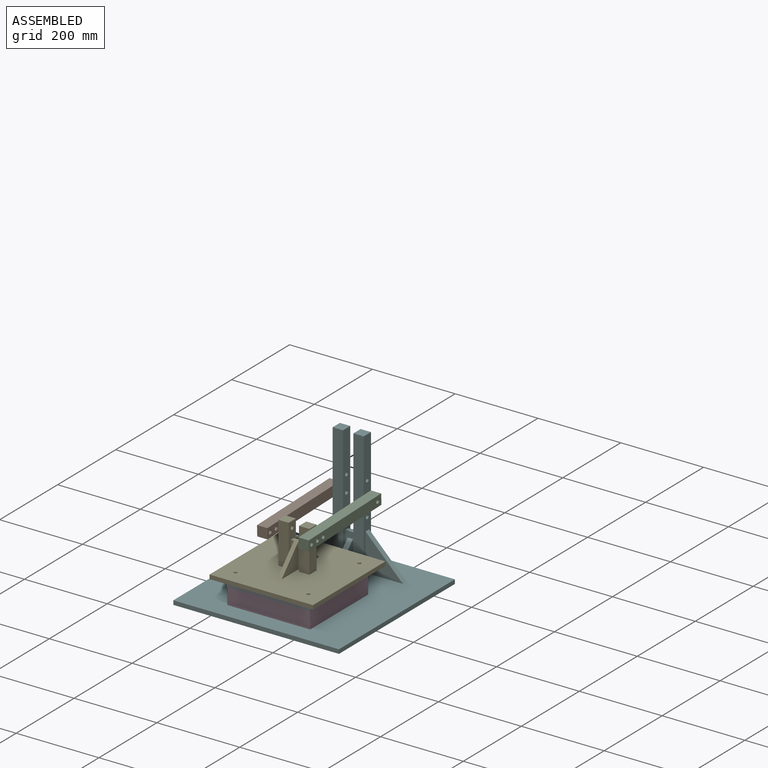
[diagram: assembled view]
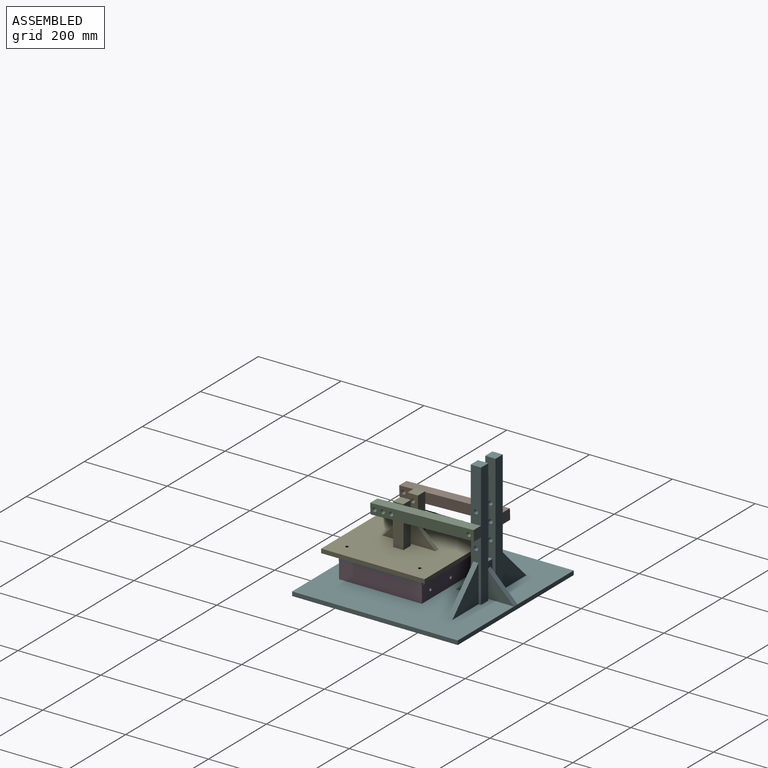
[diagram: assembled view, second angle]
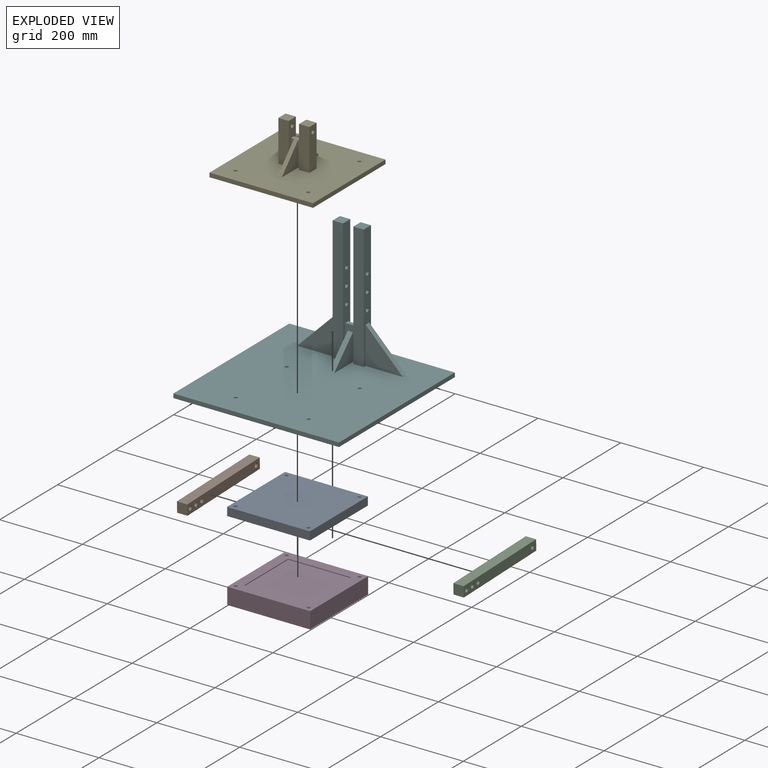
[diagram: exploded view]
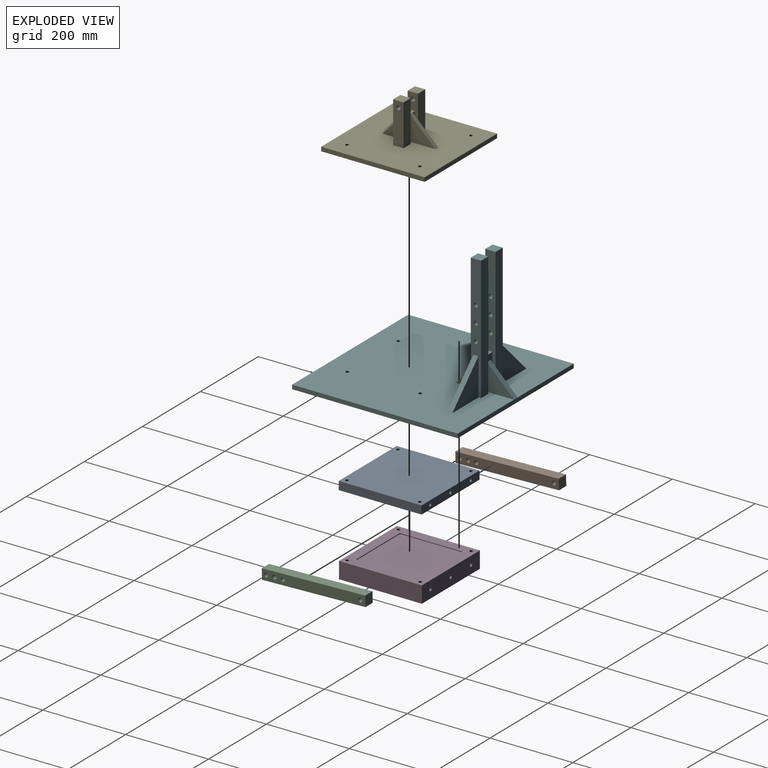
[diagram: exploded view, second angle]
ASSEMBLY  parts=6 mates=6
PART A: 16 faces, bbox 200x200x20 mm
  f0: plane 200x20mm, normal (0,1,0), area 4000mm2, adj f1,f3,f4,f5
  f1: plane 200x20mm, normal (-1,0,0), area 4000mm2, adj f0,f2,f4,f5
  f2: plane 200x20mm, normal (0,-1,0), area 3849.2mm2, adj f1,f3,f4,f5,f10,f12,f14
  f3: plane 200x20mm, normal (1,0,0), area 4000mm2, adj f0,f2,f4,f5
  f4: plane 200x200mm, normal (0,0,1), area 39798.9mm2, adj f0,f1,f2,f3,f6,f7,f8,f9
  f5: plane 200x200mm, normal (0,0,-1), area 39798.9mm2, adj f0,f1,f2,f3,f6,f7,f8,f9
  f6: cylinder r=4mm len=20mm, axis (0,0,-1), area 502.7mm2, adj f4,f5
  f7: cylinder r=4mm len=20mm, axis (0,0,-1), area 502.7mm2, adj f4,f5
  f8: cylinder r=4mm len=20mm, axis (0,0,-1), area 502.7mm2, adj f4,f5
  f9: cylinder r=4mm len=20mm, axis (0,0,-1), area 502.7mm2, adj f4,f5
  f10: cylinder r=4mm len=195mm, axis (0,-1,0), area 4900.9mm2, adj f2,f11
  f11: plane 8x8mm, normal (0,-1,0), area 50.3mm2, adj f10
  f12: cylinder r=4mm len=195mm, axis (0,-1,0), area 4900.9mm2, adj f2,f13
  f13: plane 8x8mm, normal (0,-1,0), area 50.3mm2, adj f12
  f14: cylinder r=4mm len=195mm, axis (0,-1,0), area 4900.9mm2, adj f2,f15
  f15: plane 8x8mm, normal (0,-1,0), area 50.3mm2, adj f14
PART B: 10 faces, bbox 25x250x25 mm
  f0: plane 250x25mm, normal (0,0,-1), area 6250mm2, adj f1,f3,f4,f5
  f1: plane 250x25mm, normal (1,0,0), area 5935.8mm2, adj f0,f2,f4,f5,f6,f7,f8,f9
  f2: plane 250x25mm, normal (0,0,1), area 6250mm2, adj f1,f3,f4,f5
  f3: plane 250x25mm, normal (-1,0,0), area 5935.8mm2, adj f0,f2,f4,f5,f6,f7,f8,f9
  f4: plane 25x25mm, normal (0,-1,0), area 625mm2, adj f0,f1,f2,f3
  f5: plane 25x25mm, normal (0,1,0), area 625mm2, adj f0,f1,f2,f3
  f6: cylinder r=5mm len=25mm, axis (-1,0,0), area 785.4mm2, adj f1,f3
  f7: cylinder r=5mm len=25mm, axis (-1,0,0), area 785.4mm2, adj f1,f3
  f8: cylinder r=5mm len=25mm, axis (-1,0,0), area 785.4mm2, adj f1,f3
  f9: cylinder r=5mm len=25mm, axis (-1,0,0), area 785.4mm2, adj f1,f3
PART C: same geometry as B
PART D: 25 faces, bbox 200x200x40 mm
  f0: plane 200x200mm, normal (0,0,1), area 16580.9mm2, adj f1,f3,f4,f5,f6,f7,f8,f9
  f1: plane 200x40mm, normal (-1,0,0), area 8000mm2, adj f0,f2,f4,f5
  f2: plane 200x200mm, normal (0,0,-1), area 39798.9mm2, adj f1,f3,f4,f5,f21,f22,f23,f24
  f3: plane 200x40mm, normal (1,0,0), area 8000mm2, adj f0,f2,f4,f5
  f4: plane 200x40mm, normal (0,-1,0), area 8000mm2, adj f0,f1,f2,f3
  f5: plane 200x40mm, normal (0,1,0), area 7849.2mm2, adj f0,f1,f2,f3,f15,f17,f19
  f6: plane 146.4x2mm, normal (-1,0,0), area 292.8mm2, adj f0,f7,f13,f14
  f7: cylinder r=3mm len=3mm, axis (0,0,1), area 9.4mm2, adj f0,f6,f8,f14
  f8: plane 146.4x2mm, normal (0,-1,0), area 292.8mm2, adj f0,f7,f9,f14
  f9: cylinder r=3mm len=3mm, axis (0,0,1), area 9.4mm2, adj f0,f8,f10,f14
  f10: plane 146.4x2mm, normal (1,0,0), area 292.8mm2, adj f0,f9,f11,f14
  f11: cylinder r=3mm len=3mm, axis (0,0,1), area 9.4mm2, adj f0,f10,f12,f14
  f12: plane 146.4x2mm, normal (0,1,0), area 292.8mm2, adj f0,f11,f13,f14
  f13: cylinder r=3mm len=3mm, axis (0,0,1), area 9.4mm2, adj f0,f6,f12,f14
  f14: plane 152.4x152.4mm, normal (0,0,1), area 23218mm2, adj f6,f7,f8,f9,f10,f11,f12,f13
  f15: cylinder r=4mm len=195mm, axis (0,1,0), area 4900.9mm2, adj f5,f16
  f16: plane 8x8mm, normal (0,1,0), area 50.3mm2, adj f15
  f17: cylinder r=4mm len=195mm, axis (0,1,0), area 4900.9mm2, adj f5,f18
  f18: plane 8x8mm, normal (0,1,0), area 50.3mm2, adj f17
  f19: cylinder r=4mm len=195mm, axis (0,1,0), area 4900.9mm2, adj f5,f20
  f20: plane 8x8mm, normal (0,1,0), area 50.3mm2, adj f19
  f21: cylinder r=4mm len=40mm, axis (0,0,1), area 1005.3mm2, adj f0,f2
  f22: cylinder r=4mm len=40mm, axis (0,0,1), area 1005.3mm2, adj f0,f2
  f23: cylinder r=4mm len=40mm, axis (0,0,1), area 1005.3mm2, adj f0,f2
  f24: cylinder r=4mm len=40mm, axis (0,0,1), area 1005.3mm2, adj f0,f2
PART E: 33 faces, bbox 250x250x110 mm
  f0: plane 60x7.5mm, normal (0,-1,0), area 450mm2, adj f1,f3,f20,f25
  f1: plane 250x250mm, normal (0,0,1), area 59612.4mm2, adj f0,f2,f3,f4,f5,f6,f7,f8
  f2: plane 60x7.5mm, normal (0,1,0), area 450mm2, adj f1,f4,f20,f23
  f3: plane 100x25mm, normal (1,0,0), area 1821.5mm2, adj f0,f1,f10,f11,f13,f19,f20,f28
  f4: plane 100x25mm, normal (-1,0,0), area 1821.5mm2, adj f1,f2,f14,f15,f17,f18,f20,f27
  f5: plane 250x10mm, normal (-1,0,0), area 2500mm2, adj f1,f6,f8,f9
  f6: plane 250x10mm, normal (0,-1,0), area 2500mm2, adj f1,f5,f7,f9
  f7: plane 250x10mm, normal (1,0,0), area 2500mm2, adj f1,f6,f8,f9
  f8: plane 250x10mm, normal (0,1,0), area 2500mm2, adj f1,f5,f7,f9
  f9: plane 250x250mm, normal (0,0,-1), area 62298.9mm2, adj f5,f6,f7,f8,f29,f30,f31,f32
  f10: plane 100x25mm, normal (0,-1,0), area 2500mm2, adj f1,f3,f12,f13
  f11: plane 100x25mm, normal (0,1,0), area 2500mm2, adj f1,f3,f12,f13
  f12: plane 100x25mm, normal (-1,0,0), area 2421.5mm2, adj f1,f10,f11,f13,f28
  f13: plane 25x25mm, normal (0,0,1), area 625mm2, adj f3,f10,f11,f12
  f14: plane 100x25mm, normal (0,1,0), area 2500mm2, adj f1,f4,f16,f17
  f15: plane 100x25mm, normal (0,-1,0), area 2500mm2, adj f1,f4,f16,f17
  f16: plane 100x25mm, normal (1,0,0), area 2421.5mm2, adj f1,f14,f15,f17,f27
  f17: plane 25x25mm, normal (0,0,1), area 625mm2, adj f4,f14,f15,f16
  f18: plane 60x7.5mm, normal (0,-1,0), area 450mm2, adj f1,f4,f20,f26
  f19: plane 60x7.5mm, normal (0,1,0), area 450mm2, adj f1,f3,f20,f22
  f20: plane 25x10mm, normal (0,0,1), area 250mm2, adj f0,f2,f3,f4,f18,f19,f21,f24
  f21: plane 62.27x60mm, normal (0,0.69,0.72), area 864.8mm2, adj f1,f20,f22,f23
  f22: plane 62.27x60mm, normal (-1,0,0), area 1868.2mm2, adj f1,f19,f21
  f23: plane 62.27x60mm, normal (1,0,0), area 1868.2mm2, adj f1,f2,f21
  f24: plane 60x56.38mm, normal (0,-0.73,0.68), area 823.3mm2, adj f1,f20,f25,f26
  f25: plane 60x56.38mm, normal (-1,0,0), area 1691.3mm2, adj f0,f1,f24
  f26: plane 60x56.38mm, normal (1,0,0), area 1691.3mm2, adj f1,f18,f24
  f27: cylinder r=5mm len=25mm, axis (-1,0,0), area 785.4mm2, adj f4,f16
  f28: cylinder r=5mm len=25mm, axis (-1,0,0), area 785.4mm2, adj f3,f12
  f29: cylinder r=4mm len=10mm, axis (0,0,-1), area 251.3mm2, adj f1,f9
  f30: cylinder r=4mm len=10mm, axis (0,0,-1), area 251.3mm2, adj f1,f9
  f31: cylinder r=4mm len=10mm, axis (0,0,-1), area 251.3mm2, adj f1,f9
  f32: cylinder r=4mm len=10mm, axis (0,0,-1), area 251.3mm2, adj f1,f9
PART F: 41 faces, bbox 400x400x310 mm
  f0: plane 80x25mm, normal (0,-1,0), area 1187.5mm2, adj f2,f3,f11,f28,f38,f39,f40
  f1: plane 80x25mm, normal (0,1,0), area 1187.5mm2, adj f2,f3,f11,f28,f35,f36,f37
  f2: plane 400x400mm, normal (0,0,1), area 154423.6mm2, adj f0,f1,f3,f4,f5,f6,f7,f9
  f3: plane 300x25mm, normal (-1,0,0), area 6464.4mm2, adj f0,f1,f2,f14,f16,f17,f18,f19
  f4: plane 400x10mm, normal (-1,0,0), area 4000mm2, adj f2,f5,f7,f8
  f5: plane 400x10mm, normal (0,-1,0), area 4000mm2, adj f2,f4,f6,f8
  f6: plane 400x10mm, normal (1,0,0), area 4000mm2, adj f2,f5,f7,f8
  f7: plane 400x10mm, normal (0,1,0), area 4000mm2, adj f2,f4,f6,f8,f35
  f8: plane 400x400mm, normal (0,0,-1), area 159798.9mm2, adj f4,f5,f6,f7,f24,f25,f26,f27
  f9: plane 300x25mm, normal (-1,0,0), area 6139.2mm2, adj f2,f10,f12,f13,f21,f22,f23,f32
  f10: plane 300x25mm, normal (0,-1,0), area 7500mm2, adj f2,f9,f11,f13
  f11: plane 300x25mm, normal (1,0,0), area 6464.4mm2, adj f0,f1,f2,f10,f12,f13,f21,f22
  f12: plane 300x25mm, normal (0,1,0), area 7500mm2, adj f2,f9,f11,f13
  f13: plane 25x25mm, normal (0,0,1), area 625mm2, adj f9,f10,f11,f12
  f14: plane 300x25mm, normal (0,-1,0), area 7500mm2, adj f2,f3,f15,f17
  f15: plane 300x25mm, normal (1,0,0), area 6139.2mm2, adj f2,f14,f16,f17,f18,f19,f20,f29
  f16: plane 300x25mm, normal (0,1,0), area 7500mm2, adj f2,f3,f15,f17
  f17: plane 25x25mm, normal (0,0,1), area 625mm2, adj f3,f14,f15,f16
  f18: cylinder r=5mm len=25mm, axis (1,0,0), area 785.4mm2, adj f3,f15
  f19: cylinder r=5mm len=25mm, axis (1,0,0), area 785.4mm2, adj f3,f15
  f20: cylinder r=5mm len=25mm, axis (1,0,0), area 785.4mm2, adj f3,f15
  f21: cylinder r=5mm len=25mm, axis (1,0,0), area 785.4mm2, adj f9,f11
  f22: cylinder r=5mm len=25mm, axis (1,0,0), area 785.4mm2, adj f9,f11
  f23: cylinder r=5mm len=25mm, axis (1,0,0), area 785.4mm2, adj f9,f11
  f24: cylinder r=4mm len=10mm, axis (0,0,1), area 251.3mm2, adj f2,f8
  f25: cylinder r=4mm len=10mm, axis (0,0,1), area 251.3mm2, adj f2,f8
  f26: cylinder r=4mm len=10mm, axis (0,0,1), area 251.3mm2, adj f2,f8
  f27: cylinder r=4mm len=10mm, axis (0,0,1), area 251.3mm2, adj f2,f8
  f28: plane 25x10mm, normal (0,0,1), area 250mm2, adj f0,f1,f3,f11
  f29: plane 90.01x90.01mm, normal (0.71,0,0.71), area 1591.2mm2, adj f2,f15,f30,f31
  f30: plane 90.01x90.01mm, normal (0,1,0), area 4051.1mm2, adj f2,f15,f29
  f31: plane 90.01x90.01mm, normal (0,-1,0), area 4051.1mm2, adj f2,f15,f29
  f32: plane 90.01x90.01mm, normal (-0.71,0,0.71), area 1591.2mm2, adj f2,f9,f33,f34
  f33: plane 90.01x90.01mm, normal (0,1,0), area 4051.1mm2, adj f2,f9,f32
  f34: plane 90.01x90.01mm, normal (0,-1,0), area 4051.1mm2, adj f2,f9,f32
  f35: plane 65x65mm, normal (0,0.71,0.71), area 1149mm2, adj f1,f7,f36,f37
  f36: plane 65x65mm, normal (1,0,0), area 2112.5mm2, adj f1,f2,f35
  f37: plane 65x65mm, normal (-1,0,0), area 2112.5mm2, adj f1,f2,f35
  f38: plane 65x65mm, normal (0,-0.71,0.71), area 1149mm2, adj f0,f2,f39,f40
  f39: plane 65x65mm, normal (1,0,0), area 2112.5mm2, adj f0,f2,f38
  f40: plane 65x65mm, normal (-1,0,0), area 2112.5mm2, adj f0,f2,f38
PLACE A rot(axis=(0,0,1),180deg) t=(-18.65,-88.42,275.34)mm
PLACE B rot(axis=(1,0,0),1.6deg) t=(-68.65,111.5,396.05)mm
PLACE C rot(axis=(1,0,0),1.6deg) t=(31.35,111.5,396.05)mm
PLACE D t=(-18.65,12.27,255.69)mm
PLACE E t=(-18.65,-88.42,295.34)mm
PLACE F t=(-18.65,-31,225.69)mm fixed
MATE fastened E.f32 <-> A.f6  axis (0,0,-1) through (69.35,-176.42,295.34)mm
MATE revolute C.f9 <-> F.f19  axis (-1,0,0) through (18.85,99,395.69)mm
MATE revolute B.f7 <-> E.f27  axis (1,0,0) through (-56.15,-88.42,390.34)mm
MATE revolute C.f7 <-> E.f27  axis (-1,0,0) through (18.85,-88.42,390.34)mm
MATE revolute B.f9 <-> F.f19  axis (1,0,0) through (-56.15,99,395.69)mm
MATE fastened D.f24 <-> F.f27  axis (0,0,-1) through (69.35,-175.73,235.69)mm
